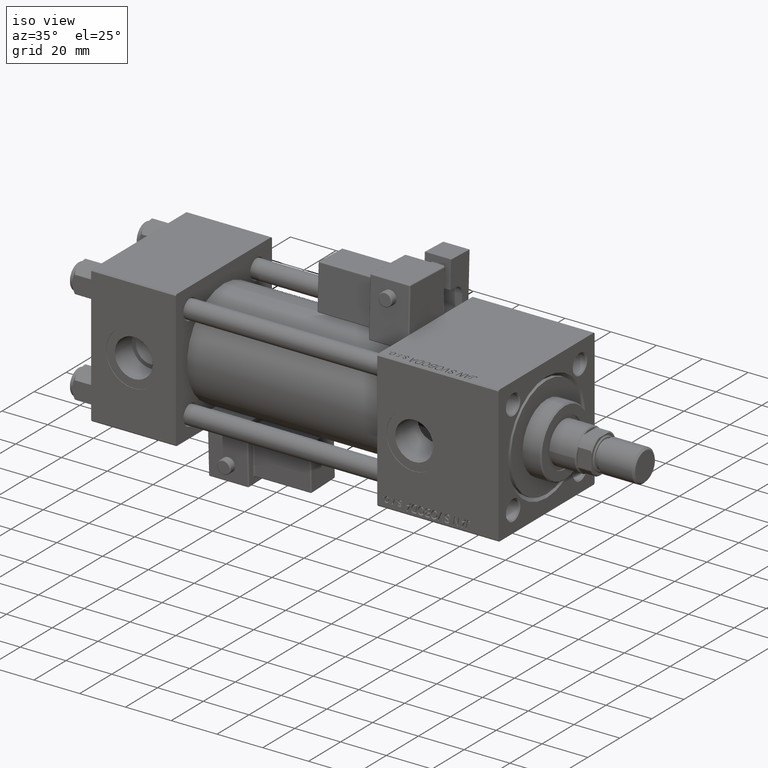
[diagram: clean part render]
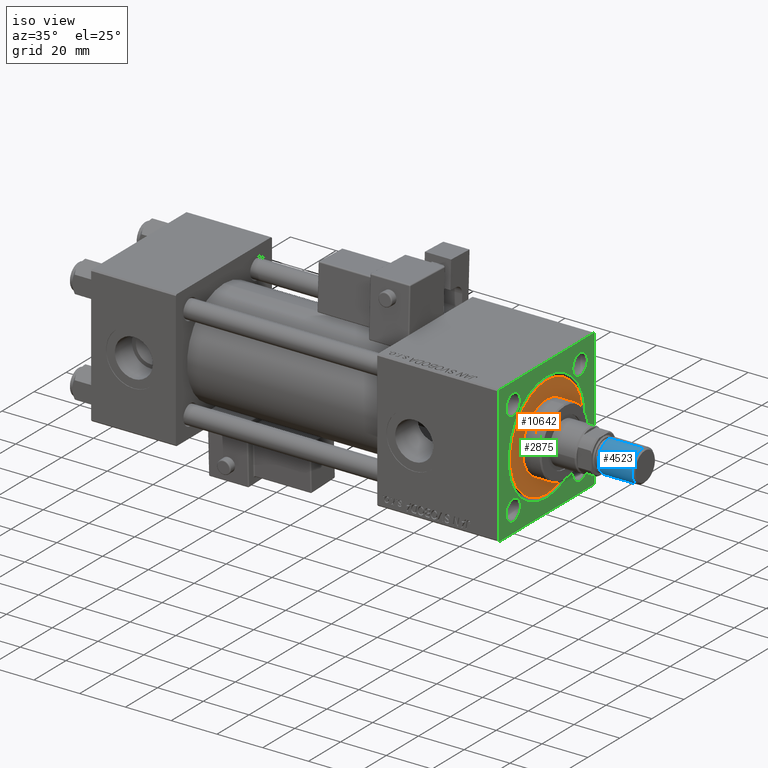
[diagram: same view with three faces highlighted in distinct colors, each labeled with its STEP entity id]
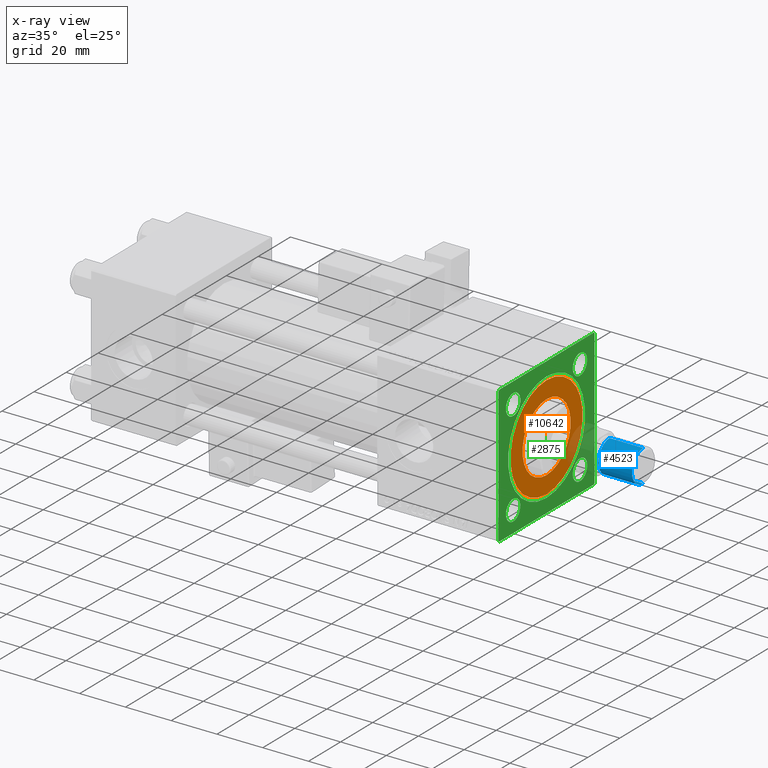
[diagram: x-ray of the same camera — body ghosted, the three highlighted faces saturated]
A machine part, iso view with three faces highlighted in distinct colors.
The next image is the same camera in x-ray (body ghosted, the three faces saturated) — at least one of them is partly hidden behind the body in this view.
Their STEP definitions:

[orange] entity #10642 — the highlighted planar face has unit normal (1, 0, 0).
#556 = DIRECTION ( 'NONE',  ( 0.000000000000000000, 0.000000000000000000, 1.000000000000000000 ) ) ;
#1755 = ORIENTED_EDGE ( 'NONE', *, *, #2499, .F. ) ;
#2499 = EDGE_CURVE ( 'NONE', #18498, #47362, #18496, .T. ) ;
#2609 = DIRECTION ( 'NONE',  ( 0.000000000000000000, 0.000000000000000000, 1.000000000000000000 ) ) ;
#6167 = CIRCLE ( 'NONE', #44330, 22.50000000000000355 ) ;
#6302 = DIRECTION ( 'NONE',  ( 0.000000000000000000, 0.000000000000000000, 1.000000000000000000 ) ) ;
#10642 = ADVANCED_FACE ( 'NONE', ( #10936, #11205 ), #27914, .T. ) ;
#10708 = ORIENTED_EDGE ( 'NONE', *, *, #38339, .F. ) ;
#10936 = FACE_BOUND ( 'NONE', #19419, .T. ) ;
#11205 = FACE_OUTER_BOUND ( 'NONE', #16093, .T. ) ;
#14266 = DIRECTION ( 'NONE',  ( 1.000000000000000000, 0.000000000000000000, 0.000000000000000000 ) ) ;
#14402 = CARTESIAN_POINT ( 'NONE',  ( 0.000000000000000000, 0.000000000000000000, 28.69999999999999929 ) ) ;
#15100 = AXIS2_PLACEMENT_3D ( 'NONE', #27598, #27057, #14266 ) ;
#16093 = EDGE_LOOP ( 'NONE', ( #46259, #45706 ) ) ;
#17313 = VERTEX_POINT ( 'NONE', #48506 ) ;
#18496 = CIRCLE ( 'NONE', #53069, 15.00000000000000000 ) ;
#18498 = VERTEX_POINT ( 'NONE', #38145 ) ;
#19082 = DIRECTION ( 'NONE',  ( 1.000000000000000000, 0.000000000000000000, 0.000000000000000000 ) ) ;
#19419 = EDGE_LOOP ( 'NONE', ( #10708, #1755 ) ) ;
#21258 = AXIS2_PLACEMENT_3D ( 'NONE', #44093, #6302, #19082 ) ;
#23725 = CARTESIAN_POINT ( 'NONE',  ( 0.000000000000000000, 0.000000000000000000, 28.69999999999999929 ) ) ;
#25586 = CARTESIAN_POINT ( 'NONE',  ( 0.000000000000000000, 0.000000000000000000, 28.69999999999999929 ) ) ;
#25712 = CIRCLE ( 'NONE', #21258, 15.00000000000000000 ) ;
#26370 = DIRECTION ( 'NONE',  ( 1.000000000000000000, 0.000000000000000000, 0.000000000000000000 ) ) ;
#27057 = DIRECTION ( 'NONE',  ( 0.000000000000000000, 0.000000000000000000, 1.000000000000000000 ) ) ;
#27544 = CARTESIAN_POINT ( 'NONE',  ( -15.00000000000000000, 0.000000000000000000, 28.69999999999999929 ) ) ;
#27598 = CARTESIAN_POINT ( 'NONE',  ( 0.000000000000000000, 0.000000000000000000, 28.69999999999999929 ) ) ;
#27914 = PLANE ( 'NONE',  #49731 ) ;
#29634 = CARTESIAN_POINT ( 'NONE',  ( 22.50000000000000355, 2.755455298081545172E-15, 28.69999999999999929 ) ) ;
#29752 = DIRECTION ( 'NONE',  ( 1.000000000000000000, 0.000000000000000000, 0.000000000000000000 ) ) ;
#31597 = VERTEX_POINT ( 'NONE', #29634 ) ;
#32827 = CIRCLE ( 'NONE', #15100, 22.50000000000000355 ) ;
#38145 = CARTESIAN_POINT ( 'NONE',  ( 15.00000000000000000, 1.836970198721029589E-15, 28.69999999999999929 ) ) ;
#38339 = EDGE_CURVE ( 'NONE', #47362, #18498, #25712, .T. ) ;
#38584 = DIRECTION ( 'NONE',  ( 0.000000000000000000, 0.000000000000000000, 1.000000000000000000 ) ) ;
#38812 = EDGE_CURVE ( 'NONE', #17313, #31597, #6167, .T. ) ;
#39509 = EDGE_CURVE ( 'NONE', #31597, #17313, #32827, .T. ) ;
#40949 = DIRECTION ( 'NONE',  ( 1.000000000000000000, 0.000000000000000000, -0.000000000000000000 ) ) ;
#44093 = CARTESIAN_POINT ( 'NONE',  ( 0.000000000000000000, 0.000000000000000000, 28.69999999999999929 ) ) ;
#44330 = AXIS2_PLACEMENT_3D ( 'NONE', #25586, #556, #29752 ) ;
#45706 = ORIENTED_EDGE ( 'NONE', *, *, #39509, .T. ) ;
#46259 = ORIENTED_EDGE ( 'NONE', *, *, #38812, .T. ) ;
#47362 = VERTEX_POINT ( 'NONE', #27544 ) ;
#48506 = CARTESIAN_POINT ( 'NONE',  ( -22.50000000000000355, 0.000000000000000000, 28.69999999999999929 ) ) ;
#49731 = AXIS2_PLACEMENT_3D ( 'NONE', #23725, #2609, #40949 ) ;
#53069 = AXIS2_PLACEMENT_3D ( 'NONE', #14402, #38584, #26370 ) ;

[blue] entity #4523 — the highlighted cylindrical surface (edge-blend (fillet) strip) has radius 7 mm, axis along (1, -0, -0).
#1908 = DIRECTION ( 'NONE',  ( 1.000000000000000000, 0.000000000000000000, 0.000000000000000000 ) ) ;
#2649 = DIRECTION ( 'NONE',  ( 1.000000000000000000, 0.000000000000000000, 0.000000000000000000 ) ) ;
#4523 = ADVANCED_FACE ( 'NONE', ( #46391 ), #37790, .T. ) ;
#5208 = AXIS2_PLACEMENT_3D ( 'NONE', #5997, #39894, #2649 ) ;
#5997 = CARTESIAN_POINT ( 'NONE',  ( 0.000000000000000000, 0.000000000000000000, 15.50000000000000000 ) ) ;
#7248 = CIRCLE ( 'NONE', #13477, 7.000000000000000000 ) ;
#8386 = VERTEX_POINT ( 'NONE', #27349 ) ;
#9364 = ORIENTED_EDGE ( 'NONE', *, *, #40523, .F. ) ;
#12745 = VERTEX_POINT ( 'NONE', #54985 ) ;
#13095 = EDGE_LOOP ( 'NONE', ( #14065, #9364, #28266, #15316 ) ) ;
#13477 = AXIS2_PLACEMENT_3D ( 'NONE', #40246, #52739, #1908 ) ;
#13732 = EDGE_CURVE ( 'NONE', #12745, #8386, #7248, .T. ) ;
#14065 = ORIENTED_EDGE ( 'NONE', *, *, #20073, .F. ) ;
#15316 = ORIENTED_EDGE ( 'NONE', *, *, #13732, .T. ) ;
#16423 = EDGE_CURVE ( 'NONE', #27352, #12745, #44302, .T. ) ;
#19780 = CARTESIAN_POINT ( 'NONE',  ( 7.000000000000000000, 8.572527594031473190E-16, 15.50000000000000000 ) ) ;
#20073 = EDGE_CURVE ( 'NONE', #44979, #8386, #39616, .T. ) ;
#27099 = DIRECTION ( 'NONE',  ( -0.000000000000000000, -0.000000000000000000, -1.000000000000000000 ) ) ;
#27349 = CARTESIAN_POINT ( 'NONE',  ( 7.000000000000000000, 8.572527594031473190E-16, 0.8000000000000020428 ) ) ;
#27352 = VERTEX_POINT ( 'NONE', #45489 ) ;
#28266 = ORIENTED_EDGE ( 'NONE', *, *, #16423, .T. ) ;
#28634 = CARTESIAN_POINT ( 'NONE',  ( 0.000000000000000000, 0.000000000000000000, 15.50000000000000000 ) ) ;
#28679 = VECTOR ( 'NONE', #44063, 1000.000000000000000 ) ;
#29461 = DIRECTION ( 'NONE',  ( -1.000000000000000000, 0.000000000000000000, 0.000000000000000000 ) ) ;
#35418 = CARTESIAN_POINT ( 'NONE',  ( -7.000000000000000000, 0.000000000000000000, 15.50000000000000000 ) ) ;
#37790 = CYLINDRICAL_SURFACE ( 'NONE', #53156, 7.000000000000000000 ) ;
#39616 = LINE ( 'NONE', #39890, #28679 ) ;
#39890 = CARTESIAN_POINT ( 'NONE',  ( 7.000000000000000000, 8.572527594031473190E-16, 15.50000000000000000 ) ) ;
#39894 = DIRECTION ( 'NONE',  ( 0.000000000000000000, 0.000000000000000000, 1.000000000000000000 ) ) ;
#40246 = CARTESIAN_POINT ( 'NONE',  ( 0.000000000000000000, 0.000000000000000000, 0.8000000000000020428 ) ) ;
#40523 = EDGE_CURVE ( 'NONE', #27352, #44979, #46922, .T. ) ;
#40858 = DIRECTION ( 'NONE',  ( -0.000000000000000000, -0.000000000000000000, -1.000000000000000000 ) ) ;
#41847 = VECTOR ( 'NONE', #27099, 1000.000000000000000 ) ;
#44063 = DIRECTION ( 'NONE',  ( -0.000000000000000000, -0.000000000000000000, -1.000000000000000000 ) ) ;
#44302 = LINE ( 'NONE', #35418, #41847 ) ;
#44979 = VERTEX_POINT ( 'NONE', #19780 ) ;
#45489 = CARTESIAN_POINT ( 'NONE',  ( -7.000000000000000000, 0.000000000000000000, 15.50000000000000000 ) ) ;
#46391 = FACE_OUTER_BOUND ( 'NONE', #13095, .T. ) ;
#46922 = CIRCLE ( 'NONE', #5208, 7.000000000000000000 ) ;
#52739 = DIRECTION ( 'NONE',  ( -0.000000000000000000, -0.000000000000000000, 1.000000000000000000 ) ) ;
#53156 = AXIS2_PLACEMENT_3D ( 'NONE', #28634, #40858, #29461 ) ;
#54985 = CARTESIAN_POINT ( 'NONE',  ( -7.000000000000000000, 0.000000000000000000, 0.8000000000000020428 ) ) ;

[green] entity #2875 — the highlighted planar face has unit normal (-1, 0, 0).
#362 = EDGE_CURVE ( 'NONE', #35944, #36602, #7329, .T. ) ;
#722 = CARTESIAN_POINT ( 'NONE',  ( 178.0000000000000000, 0.000000000000000000, 0.000000000000000000 ) ) ;
#1433 = VERTEX_POINT ( 'NONE', #8985 ) ;
#1533 = CIRCLE ( 'NONE', #40596, 4.500000000000031974 ) ;
#1760 = CARTESIAN_POINT ( 'NONE',  ( 178.0000000000000000, 20.84999999999999787, 20.85000000000000142 ) ) ;
#1784 = CARTESIAN_POINT ( 'NONE',  ( 178.0000000000000000, -20.85000000000000142, -20.85000000000000142 ) ) ;
#1839 = VERTEX_POINT ( 'NONE', #25889 ) ;
#2468 = AXIS2_PLACEMENT_3D ( 'NONE', #27412, #6004, #23249 ) ;
#2504 = AXIS2_PLACEMENT_3D ( 'NONE', #722, #22402, #34912 ) ;
#2521 = CIRCLE ( 'NONE', #38887, 23.99999999999999645 ) ;
#2875 = ADVANCED_FACE ( 'NONE', ( #18505, #5450, #14058, #13779, #38520, #9326 ), #52119, .F. ) ;
#3311 = EDGE_CURVE ( 'NONE', #1839, #42952, #8764, .T. ) ;
#3344 = ORIENTED_EDGE ( 'NONE', *, *, #23519, .T. ) ;
#3424 = CARTESIAN_POINT ( 'NONE',  ( 178.0000000000000000, 20.84999999999999787, -20.85000000000000142 ) ) ;
#3721 = CARTESIAN_POINT ( 'NONE',  ( 178.0000000000000000, -30.00000000000000000, -29.49999999999998579 ) ) ;
#3919 = DIRECTION ( 'NONE',  ( 0.000000000000000000, 0.000000000000000000, 1.000000000000000000 ) ) ;
#4049 = VERTEX_POINT ( 'NONE', #24321 ) ;
#5126 = CARTESIAN_POINT ( 'NONE',  ( 178.0000000000000000, -29.50000000000000000, -30.00000000000000000 ) ) ;
#5450 = FACE_BOUND ( 'NONE', #19219, .T. ) ;
#5622 = ORIENTED_EDGE ( 'NONE', *, *, #8347, .T. ) ;
#5672 = ORIENTED_EDGE ( 'NONE', *, *, #13806, .T. ) ;
#5785 = CARTESIAN_POINT ( 'NONE',  ( 178.0000000000000000, -30.00000000000000000, 29.49999999999999289 ) ) ;
#6004 = DIRECTION ( 'NONE',  ( -1.000000000000000000, 0.000000000000000000, -0.000000000000000000 ) ) ;
#6025 = ORIENTED_EDGE ( 'NONE', *, *, #32064, .T. ) ;
#6130 = DIRECTION ( 'NONE',  ( -1.000000000000000000, 0.000000000000000000, -0.000000000000000000 ) ) ;
#6193 = VECTOR ( 'NONE', #14295, 1000.000000000000114 ) ;
#6757 = LINE ( 'NONE', #53167, #6193 ) ;
#7092 = ORIENTED_EDGE ( 'NONE', *, *, #30131, .T. ) ;
#7305 = ORIENTED_EDGE ( 'NONE', *, *, #11162, .T. ) ;
#7329 = LINE ( 'NONE', #46220, #47684 ) ;
#7582 = CARTESIAN_POINT ( 'NONE',  ( 178.0000000000000000, 30.00000000000000000, -29.49999999999997868 ) ) ;
#8347 = EDGE_CURVE ( 'NONE', #25194, #36602, #6757, .T. ) ;
#8647 = VERTEX_POINT ( 'NONE', #23385 ) ;
#8764 = CIRCLE ( 'NONE', #42502, 4.500000000000031974 ) ;
#8985 = CARTESIAN_POINT ( 'NONE',  ( 178.0000000000000000, -20.84999999999999432, 25.35000000000003340 ) ) ;
#9215 = ORIENTED_EDGE ( 'NONE', *, *, #18390, .T. ) ;
#9326 = FACE_OUTER_BOUND ( 'NONE', #15046, .T. ) ;
#10413 = DIRECTION ( 'NONE',  ( 0.000000000000000000, 0.000000000000000000, 1.000000000000000000 ) ) ;
#11000 = CIRCLE ( 'NONE', #23444, 4.500000000000031974 ) ;
#11162 = EDGE_CURVE ( 'NONE', #14853, #53559, #34829, .T. ) ;
#11901 = CARTESIAN_POINT ( 'NONE',  ( 178.0000000000000000, 30.00000000000000000, 30.00000000000000000 ) ) ;
#12314 = CARTESIAN_POINT ( 'NONE',  ( 178.0000000000000000, 20.84999999999999787, 25.35000000000003340 ) ) ;
#12947 = CIRCLE ( 'NONE', #43109, 23.99999999999999645 ) ;
#13027 = CIRCLE ( 'NONE', #19217, 4.500000000000031974 ) ;
#13201 = ORIENTED_EDGE ( 'NONE', *, *, #3311, .T. ) ;
#13779 = FACE_BOUND ( 'NONE', #21345, .T. ) ;
#13806 = EDGE_CURVE ( 'NONE', #23868, #46310, #35676, .T. ) ;
#14058 = FACE_BOUND ( 'NONE', #35204, .T. ) ;
#14295 = DIRECTION ( 'NONE',  ( 0.000000000000000000, 0.7071067811865474617, -0.7071067811865474617 ) ) ;
#14332 = DIRECTION ( 'NONE',  ( -1.000000000000000000, 0.000000000000000000, -0.000000000000000000 ) ) ;
#14347 = ORIENTED_EDGE ( 'NONE', *, *, #44493, .T. ) ;
#14558 = DIRECTION ( 'NONE',  ( 0.000000000000000000, 0.000000000000000000, 1.000000000000000000 ) ) ;
#14750 = ORIENTED_EDGE ( 'NONE', *, *, #54428, .T. ) ;
#14853 = VERTEX_POINT ( 'NONE', #34554 ) ;
#15046 = EDGE_LOOP ( 'NONE', ( #14750, #5622, #44499, #25765, #30592, #46675, #7305, #14347 ) ) ;
#15173 = VECTOR ( 'NONE', #38150, 1000.000000000000000 ) ;
#15357 = CARTESIAN_POINT ( 'NONE',  ( 178.0000000000000000, 29.49999999999997158, -29.99999999999999289 ) ) ;
#15881 = VERTEX_POINT ( 'NONE', #35044 ) ;
#16160 = CARTESIAN_POINT ( 'NONE',  ( 178.0000000000000000, 0.000000000000000000, -23.99999999999999645 ) ) ;
#17266 = CARTESIAN_POINT ( 'NONE',  ( 178.0000000000000000, 30.00000000000000000, 29.50000000000000000 ) ) ;
#18297 = CARTESIAN_POINT ( 'NONE',  ( 178.0000000000000000, 20.84999999999999787, -25.35000000000003340 ) ) ;
#18390 = EDGE_CURVE ( 'NONE', #15881, #52863, #26834, .T. ) ;
#18502 = LINE ( 'NONE', #35454, #30977 ) ;
#18505 = FACE_BOUND ( 'NONE', #43746, .T. ) ;
#18740 = DIRECTION ( 'NONE',  ( -1.000000000000000000, 0.000000000000000000, -0.000000000000000000 ) ) ;
#19175 = DIRECTION ( 'NONE',  ( -0.000000000000000000, 0.7071067811865672237, 0.7071067811865279218 ) ) ;
#19217 = AXIS2_PLACEMENT_3D ( 'NONE', #51495, #38713, #52588 ) ;
#19219 = EDGE_LOOP ( 'NONE', ( #6025, #48872 ) ) ;
#21345 = EDGE_LOOP ( 'NONE', ( #34865, #5672 ) ) ;
#22374 = AXIS2_PLACEMENT_3D ( 'NONE', #1784, #18740, #14558 ) ;
#22402 = DIRECTION ( 'NONE',  ( -1.000000000000000000, 0.000000000000000000, -0.000000000000000000 ) ) ;
#22613 = DIRECTION ( 'NONE',  ( 0.000000000000000000, 0.000000000000000000, 1.000000000000000000 ) ) ;
#23249 = DIRECTION ( 'NONE',  ( 0.000000000000000000, 0.000000000000000000, 1.000000000000000000 ) ) ;
#23385 = CARTESIAN_POINT ( 'NONE',  ( 178.0000000000000000, -20.84999999999999432, 16.34999999999996945 ) ) ;
#23444 = AXIS2_PLACEMENT_3D ( 'NONE', #41994, #24767, #3919 ) ;
#23519 = EDGE_CURVE ( 'NONE', #42952, #1839, #11000, .T. ) ;
#23868 = VERTEX_POINT ( 'NONE', #35504 ) ;
#24321 = CARTESIAN_POINT ( 'NONE',  ( 178.0000000000000000, -30.00000000000000000, 29.49999999999999289 ) ) ;
#24550 = DIRECTION ( 'NONE',  ( 0.000000000000000000, -1.000000000000000000, -1.156482317317871478E-16 ) ) ;
#24767 = DIRECTION ( 'NONE',  ( -1.000000000000000000, 0.000000000000000000, -0.000000000000000000 ) ) ;
#25194 = VERTEX_POINT ( 'NONE', #3721 ) ;
#25414 = CARTESIAN_POINT ( 'NONE',  ( 178.0000000000000000, 0.000000000000000000, 0.000000000000000000 ) ) ;
#25504 = VERTEX_POINT ( 'NONE', #16160 ) ;
#25765 = ORIENTED_EDGE ( 'NONE', *, *, #26882, .T. ) ;
#25889 = CARTESIAN_POINT ( 'NONE',  ( 178.0000000000000000, 20.84999999999999787, 16.34999999999996945 ) ) ;
#26455 = CIRCLE ( 'NONE', #2468, 4.500000000000031974 ) ;
#26834 = CIRCLE ( 'NONE', #22374, 4.500000000000031974 ) ;
#26882 = EDGE_CURVE ( 'NONE', #35944, #37486, #47806, .T. ) ;
#26943 = VERTEX_POINT ( 'NONE', #53350 ) ;
#26990 = CARTESIAN_POINT ( 'NONE',  ( 178.0000000000000000, 30.00000000000000000, -29.49999999999999289 ) ) ;
#27412 = CARTESIAN_POINT ( 'NONE',  ( 178.0000000000000000, -20.85000000000000142, -20.85000000000000142 ) ) ;
#27625 = VECTOR ( 'NONE', #47864, 1000.000000000000000 ) ;
#28055 = CARTESIAN_POINT ( 'NONE',  ( 178.0000000000000000, -20.84999999999999432, 20.85000000000000142 ) ) ;
#28721 = DIRECTION ( 'NONE',  ( 0.000000000000000000, 0.000000000000000000, 1.000000000000000000 ) ) ;
#30131 = EDGE_CURVE ( 'NONE', #25504, #26943, #12947, .T. ) ;
#30592 = ORIENTED_EDGE ( 'NONE', *, *, #48000, .F. ) ;
#30977 = VECTOR ( 'NONE', #43524, 1000.000000000000114 ) ;
#31982 = DIRECTION ( 'NONE',  ( 0.000000000000000000, 0.000000000000000000, 1.000000000000000000 ) ) ;
#32064 = EDGE_CURVE ( 'NONE', #8647, #1433, #13027, .T. ) ;
#33155 = LINE ( 'NONE', #41483, #15173 ) ;
#34554 = CARTESIAN_POINT ( 'NONE',  ( 178.0000000000000000, 29.50000000000000000, 30.00000000000000000 ) ) ;
#34829 = LINE ( 'NONE', #39260, #27625 ) ;
#34865 = ORIENTED_EDGE ( 'NONE', *, *, #36204, .T. ) ;
#34912 = DIRECTION ( 'NONE',  ( -0.000000000000000000, 0.000000000000000000, 1.000000000000000000 ) ) ;
#35044 = CARTESIAN_POINT ( 'NONE',  ( 178.0000000000000000, -20.85000000000000142, -25.35000000000003340 ) ) ;
#35204 = EDGE_LOOP ( 'NONE', ( #9215, #37538 ) ) ;
#35454 = CARTESIAN_POINT ( 'NONE',  ( 178.0000000000000000, 29.50000000000000000, 30.00000000000000000 ) ) ;
#35504 = CARTESIAN_POINT ( 'NONE',  ( 178.0000000000000000, 20.84999999999999787, -16.34999999999996945 ) ) ;
#35676 = CIRCLE ( 'NONE', #51651, 4.500000000000031974 ) ;
#35813 = EDGE_CURVE ( 'NONE', #26943, #25504, #2521, .T. ) ;
#35944 = VERTEX_POINT ( 'NONE', #15357 ) ;
#36077 = VECTOR ( 'NONE', #39668, 1000.000000000000114 ) ;
#36204 = EDGE_CURVE ( 'NONE', #46310, #23868, #45107, .T. ) ;
#36602 = VERTEX_POINT ( 'NONE', #5126 ) ;
#37486 = VERTEX_POINT ( 'NONE', #7582 ) ;
#37538 = ORIENTED_EDGE ( 'NONE', *, *, #47553, .T. ) ;
#37643 = DIRECTION ( 'NONE',  ( -1.000000000000000000, 0.000000000000000000, -0.000000000000000000 ) ) ;
#38150 = DIRECTION ( 'NONE',  ( 0.000000000000000000, 0.000000000000000000, -1.000000000000000000 ) ) ;
#38190 = ORIENTED_EDGE ( 'NONE', *, *, #35813, .T. ) ;
#38302 = DIRECTION ( 'NONE',  ( 0.000000000000000000, 0.000000000000000000, -1.000000000000000000 ) ) ;
#38520 = FACE_BOUND ( 'NONE', #47556, .T. ) ;
#38713 = DIRECTION ( 'NONE',  ( -1.000000000000000000, 0.000000000000000000, -0.000000000000000000 ) ) ;
#38887 = AXIS2_PLACEMENT_3D ( 'NONE', #25414, #37643, #46246 ) ;
#39260 = CARTESIAN_POINT ( 'NONE',  ( 178.0000000000000000, 30.00000000000000000, 30.00000000000000000 ) ) ;
#39646 = VERTEX_POINT ( 'NONE', #17266 ) ;
#39668 = DIRECTION ( 'NONE',  ( -0.000000000000000000, -0.7071067811865474617, -0.7071067811865474617 ) ) ;
#40381 = CARTESIAN_POINT ( 'NONE',  ( 178.0000000000000000, -20.85000000000000142, -16.34999999999996945 ) ) ;
#40596 = AXIS2_PLACEMENT_3D ( 'NONE', #28055, #43905, #44985 ) ;
#41483 = CARTESIAN_POINT ( 'NONE',  ( 178.0000000000000000, -30.00000000000000000, 29.99999999999999289 ) ) ;
#41994 = CARTESIAN_POINT ( 'NONE',  ( 178.0000000000000000, 20.84999999999999787, 20.85000000000000142 ) ) ;
#42244 = VECTOR ( 'NONE', #19175, 1000.000000000000000 ) ;
#42502 = AXIS2_PLACEMENT_3D ( 'NONE', #1760, #45074, #22613 ) ;
#42952 = VERTEX_POINT ( 'NONE', #12314 ) ;
#43109 = AXIS2_PLACEMENT_3D ( 'NONE', #52397, #14332, #10413 ) ;
#43423 = EDGE_CURVE ( 'NONE', #1433, #8647, #1533, .T. ) ;
#43524 = DIRECTION ( 'NONE',  ( 0.000000000000000000, -0.7071067811865474617, 0.7071067811865474617 ) ) ;
#43746 = EDGE_LOOP ( 'NONE', ( #13201, #3344 ) ) ;
#43905 = DIRECTION ( 'NONE',  ( -1.000000000000000000, 0.000000000000000000, -0.000000000000000000 ) ) ;
#43933 = CARTESIAN_POINT ( 'NONE',  ( 178.0000000000000000, 20.84999999999999787, -20.85000000000000142 ) ) ;
#44493 = EDGE_CURVE ( 'NONE', #53559, #4049, #44936, .T. ) ;
#44499 = ORIENTED_EDGE ( 'NONE', *, *, #362, .F. ) ;
#44936 = LINE ( 'NONE', #5785, #36077 ) ;
#44985 = DIRECTION ( 'NONE',  ( 0.000000000000000000, 0.000000000000000000, 1.000000000000000000 ) ) ;
#45074 = DIRECTION ( 'NONE',  ( -1.000000000000000000, 0.000000000000000000, -0.000000000000000000 ) ) ;
#45107 = CIRCLE ( 'NONE', #47769, 4.500000000000031974 ) ;
#45925 = DIRECTION ( 'NONE',  ( -1.000000000000000000, 0.000000000000000000, -0.000000000000000000 ) ) ;
#46220 = CARTESIAN_POINT ( 'NONE',  ( 178.0000000000000000, 30.00000000000000000, -29.99999999999999289 ) ) ;
#46246 = DIRECTION ( 'NONE',  ( 0.000000000000000000, 0.000000000000000000, 1.000000000000000000 ) ) ;
#46310 = VERTEX_POINT ( 'NONE', #18297 ) ;
#46675 = ORIENTED_EDGE ( 'NONE', *, *, #48998, .T. ) ;
#47553 = EDGE_CURVE ( 'NONE', #52863, #15881, #26455, .T. ) ;
#47556 = EDGE_LOOP ( 'NONE', ( #7092, #38190 ) ) ;
#47628 = CARTESIAN_POINT ( 'NONE',  ( 178.0000000000000000, -29.50000000000000000, 29.99999999999999289 ) ) ;
#47684 = VECTOR ( 'NONE', #24550, 1000.000000000000000 ) ;
#47765 = VECTOR ( 'NONE', #38302, 1000.000000000000000 ) ;
#47769 = AXIS2_PLACEMENT_3D ( 'NONE', #43933, #6130, #31982 ) ;
#47806 = LINE ( 'NONE', #26990, #42244 ) ;
#47864 = DIRECTION ( 'NONE',  ( 0.000000000000000000, -1.000000000000000000, -1.156482317317871478E-16 ) ) ;
#48000 = EDGE_CURVE ( 'NONE', #39646, #37486, #51072, .T. ) ;
#48872 = ORIENTED_EDGE ( 'NONE', *, *, #43423, .T. ) ;
#48998 = EDGE_CURVE ( 'NONE', #39646, #14853, #18502, .T. ) ;
#51072 = LINE ( 'NONE', #11901, #47765 ) ;
#51495 = CARTESIAN_POINT ( 'NONE',  ( 178.0000000000000000, -20.84999999999999432, 20.85000000000000142 ) ) ;
#51651 = AXIS2_PLACEMENT_3D ( 'NONE', #3424, #45925, #28721 ) ;
#52119 = PLANE ( 'NONE',  #2504 ) ;
#52397 = CARTESIAN_POINT ( 'NONE',  ( 178.0000000000000000, 0.000000000000000000, 0.000000000000000000 ) ) ;
#52588 = DIRECTION ( 'NONE',  ( 0.000000000000000000, 0.000000000000000000, 1.000000000000000000 ) ) ;
#52863 = VERTEX_POINT ( 'NONE', #40381 ) ;
#53167 = CARTESIAN_POINT ( 'NONE',  ( 178.0000000000000000, -29.50000000000000000, -30.00000000000000000 ) ) ;
#53350 = CARTESIAN_POINT ( 'NONE',  ( 178.0000000000000000, 2.939152317953647500E-15, 23.99999999999999645 ) ) ;
#53559 = VERTEX_POINT ( 'NONE', #47628 ) ;
#54428 = EDGE_CURVE ( 'NONE', #4049, #25194, #33155, .T. ) ;